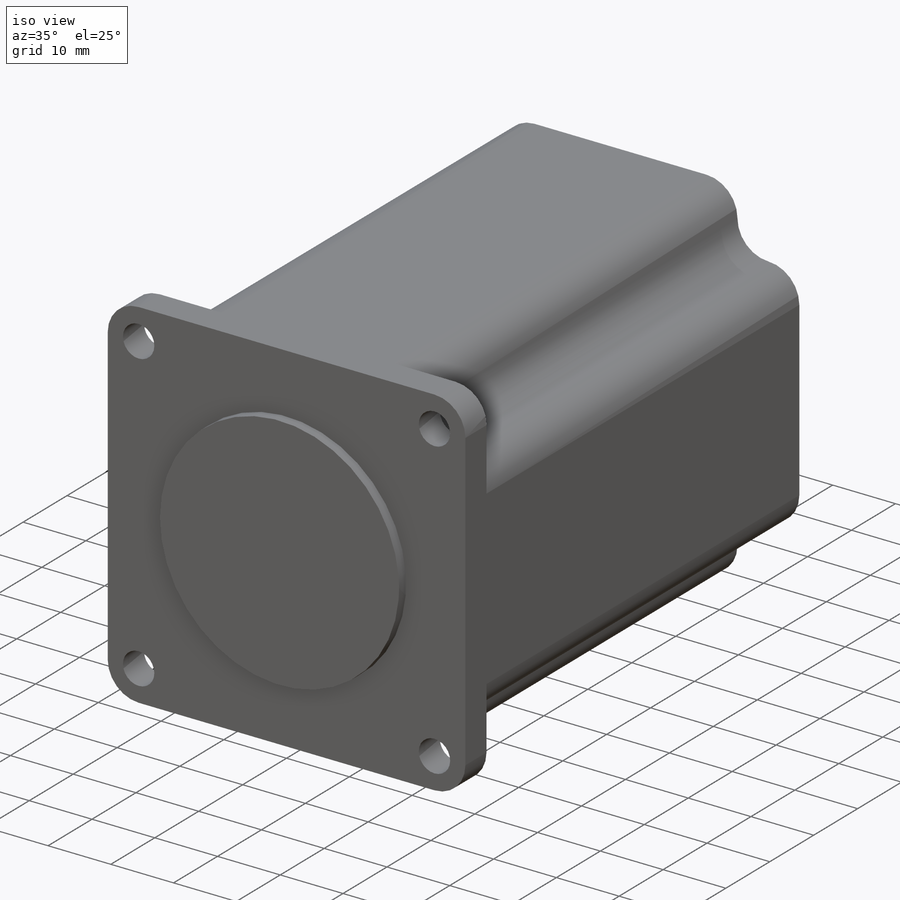
[diagram: iso view]
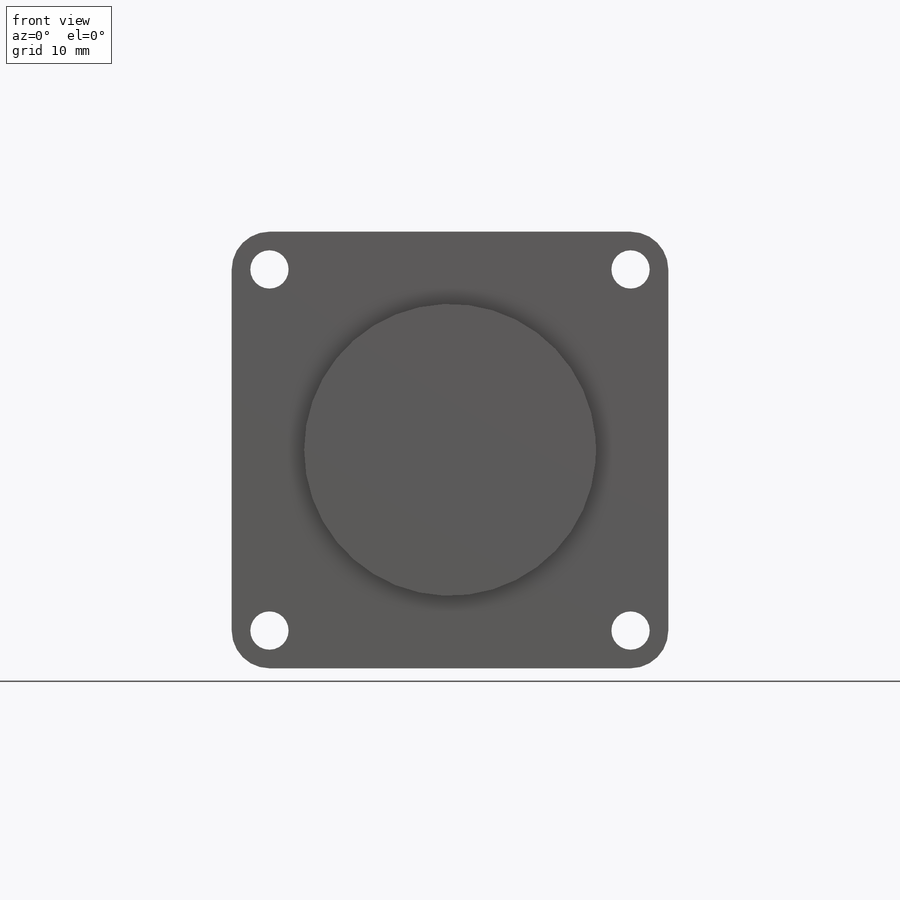
[diagram: front view]
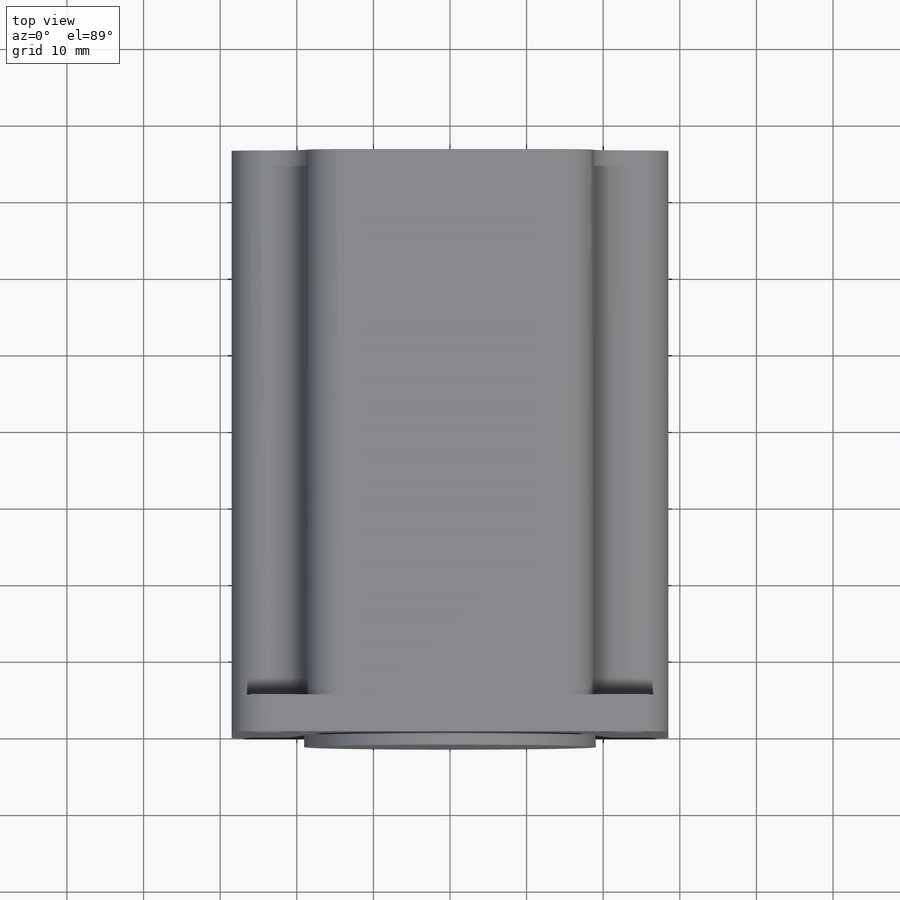
[diagram: top view]
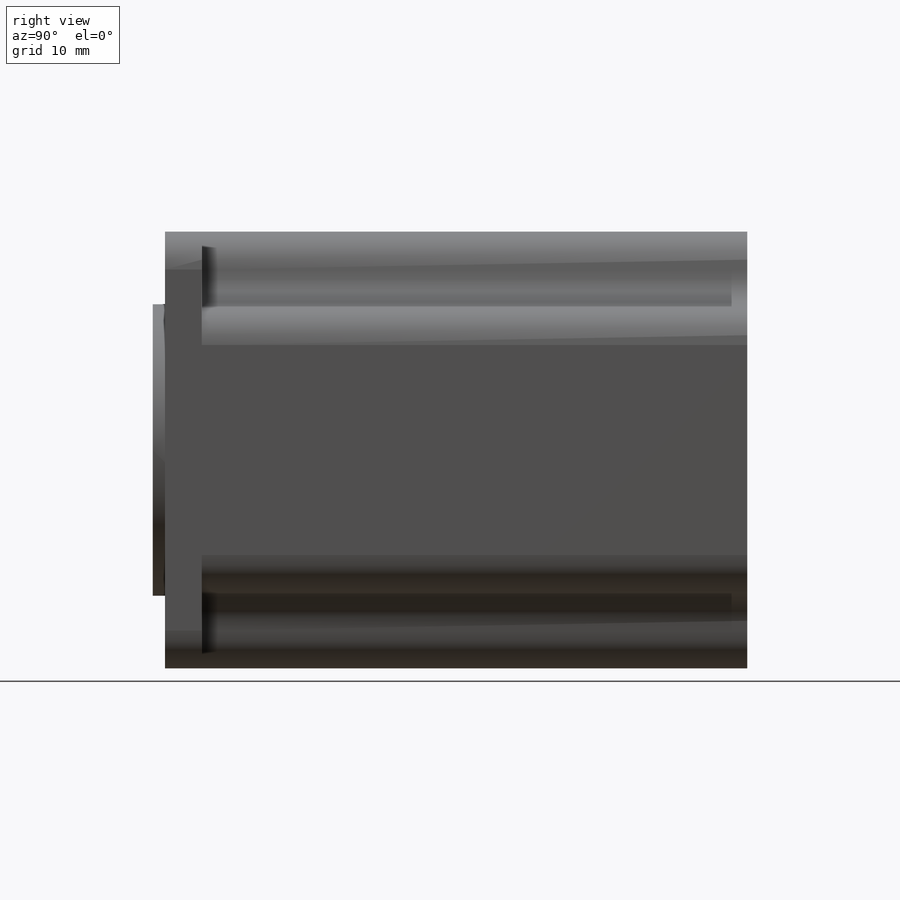
[diagram: right view]
SOLIDWORKS PART (.sldprt)
format: sldprt  version: not decoded by parser v0  size: 270,848 bytes
history: native  units: mm
features: sketch x5, cut_extrude x3, extrude x2, material x1 (+11 scaffold rows collapsed)
feature tree (22):
  scaffold x11  (default folders/planes/origin — collapsed)
  material  "Material <not specified>"
  sketch  "Sketch1"  dims[D1=57.0mm D2=57.0mm]
  extrude  "Boss-Extrude1"  Depth=76mm
  sketch  "Sketch3"  dims[D5=5.0mm D6=5.0mm D7=5.0mm D8=5.0mm D1=23.57mm D2=23.57mm D3=23.57mm D4=23.57mm]
  cut_extrude  "Cut-Extrude1"  [1 undecoded]
  sketch  "Sketch4"
  cut_extrude  "Cut-Extrude2"  [1 undecoded]
  sketch  "Sketch5"
  cut_extrude  "Cut-Extrude3"  Depth=4.8mm
  sketch  "Sketch6"  dims[D1=38.1mm]
  extrude  "Boss-Extrude2"  Depth=1.6mm
decode coverage: 6 of 10 modeling features carry decoded parameters
note: 2 parameter values undecoded
note: suppression state not decoded; provenance and decode notes live in map.json
